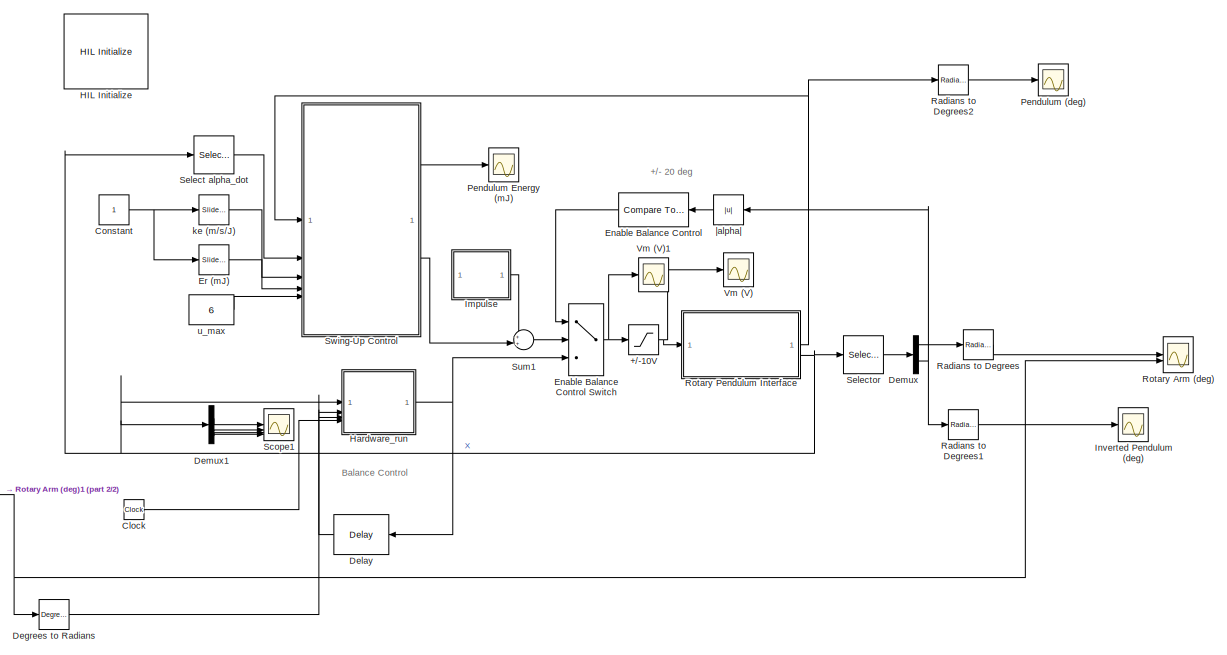
[diagram: root canvas - part 1/2, most of the canvas]
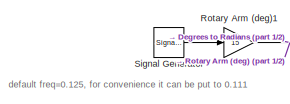
[diagram: root canvas - part 2/2, bottom left region]
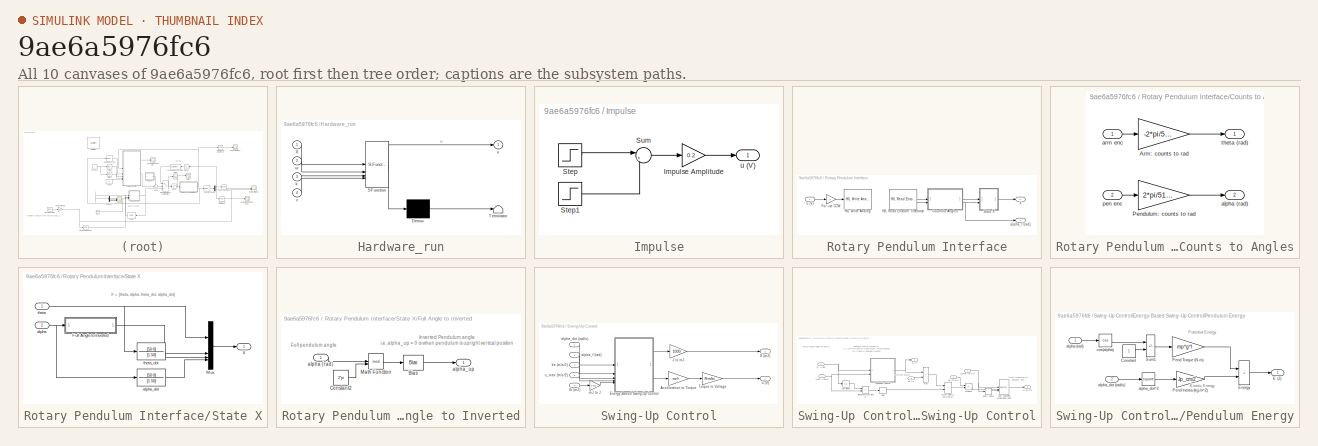
[diagram: thumbnail index - all 10 canvases of the model, root first then tree order]
MODEL slx_9ae6a5976fc6
KIND model
CONFIG AbsTol = auto
CONFIG EnableMultiTasking = on
CONFIG FixedStep = 0.002
CONFIG MaxStep = auto
CONFIG MinStep = auto
CONFIG RelTol = 1e-3
CONFIG SampleTimeConstraint = Unconstrained
CONFIG SolverName = ode4
CONFIG StartTime = 0.0
CONFIG StopTime = 50
BLOCK [Saturate] +//-10V
  LowerLimit = -10
  UpperLimit = 10
BLOCK [Clock] Clock
BLOCK [Constant] Constant
BLOCK [Reference] Degrees to Radians  REF=simulink_extras/Transformations/Degrees to
Radians
  SourceBlock = simulink_extras/Transformations/Degrees to\nRadians
  SourceType = DegreesToRadians
BLOCK [Delay] Delay
  DelayLength = 1
  InputPortMap = u0
  InputProcessing = Columns as channels (frame based)
BLOCK [Demux] Demux
  Outputs = 2
BLOCK [Demux] Demux1
BLOCK [Reference] Enable Balance Control  REF=simulink/Logic and Bit
Operations/Compare
To Constant
  SourceBlock = simulink/Logic and Bit\nOperations/Compare\nTo Constant
  SourceType = Compare To Constant
BLOCK [MultiPortSwitch] Enable Balance Control Switch
  DataPortOrder = Zero-based contiguous
  InputSameDT = off
  Inputs = 2
  SaturateOnIntegerOverflow = off
  zeroidx = on
BLOCK [Reference] Er (mJ)  REF=simulink/Math
Operations/Slider
Gain
  SourceBlock = simulink/Math\nOperations/Slider\nGain
  SourceType = Slider Gain
BLOCK [Reference] HIL Initialize  REF=quarc_library/Data Acquisition/Generic/Configuration/HIL Initialize
  AttributesFormatString = %<object_name> (%<board_type>-%<board_number>)
  SourceBlock = quarc_library/Data Acquisition/Generic/Configuration/HIL Initialize
  SourceType = HIL Initialize
  UserDataPersistent = on
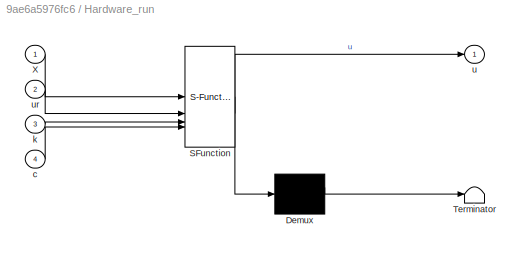
BLOCK [SubSystem] Hardware_run
  ErrorFcn = Stateflow.Translate.translate
  PermitHierarchicalResolution = ExplicitOnly
  SFBlockType = MATLAB Function
  TreatAsAtomicUnit = on
BLOCK [Demux] Hardware_run/ Demux 
  Outputs = 1
BLOCK [S-Function] Hardware_run/ SFunction 
  EnableBusSupport = off
  FunctionName = sf_sfun
  PortCounts = [4 2]
  SFcnIsStateOwnerBlock = off
  SFunctionDeploymentMode = off
  Tag = Stateflow S-Function 2
BLOCK [Terminator] Hardware_run/ Terminator 
BLOCK [Inport] Hardware_run/X
BLOCK [Inport] Hardware_run/c
  Port = 4
BLOCK [Inport] Hardware_run/k
  Port = 3
BLOCK [Outport] Hardware_run/u
BLOCK [Inport] Hardware_run/ur
  Port = 2
BLOCK [SubSystem] Impulse
BLOCK [Gain] Impulse/Impulse Amplitude
  Gain = 0.2
BLOCK [Step] Impulse/Step
  SampleTime = 0
BLOCK [Step] Impulse/Step1
  After = -1
  SampleTime = 0
  Time = 1.1
BLOCK [Sum] Impulse/Sum
  Inputs = |++
BLOCK [Outport] Impulse/u (V)
  VectorParamsAs1DForOutWhenUnconnected = off
BLOCK [Scope] Inverted Pendulum (deg)
  Floating = off
  NumInputPorts = 1
  ScopeSpecificationString = Simulink.scopes.TimeScopeBlockCfg('CurrentConfiguration', extmgr.ConfigurationSet(extmgr.Configuration('Core','General UI',true,'FigureColor',[1 1 1]),extmgr.Configuration('Core','Source UI',true),extmgr.Configuration('Sources','WiredSimulink',true,'DataLoggingVariableName','ScopeData1'),extmgr.Configuration('Visuals','Time Domain',true,'SerializedDisplays',{struct('MinYLimReal','-224.93408','MaxY...<+1631ch>
BLOCK [Scope] Pendulum (deg)
  Floating = off
  NumInputPorts = 1
  ScopeSpecificationString = Simulink.scopes.TimeScopeBlockCfg('CurrentConfiguration', extmgr.ConfigurationSet(extmgr.Configuration('Core','General UI',true),extmgr.Configuration('Core','Source UI',true),extmgr.Configuration('Sources','WiredSimulink',true,'DataLoggingVariableName','ScopeData1'),extmgr.Configuration('Visuals','Time Domain',true,'SerializedDisplays',{struct('MinYLimReal','-1055.32471','MaxYLimReal','337.96143',...<+1452ch>
BLOCK [Scope] Pendulum Energy (mJ)
  Floating = off
  NumInputPorts = 1
  ScopeSpecificationString = Simulink.scopes.TimeScopeBlockCfg('CurrentConfiguration', extmgr.ConfigurationSet(extmgr.Configuration('Core','General UI',true),extmgr.Configuration('Core','Source UI',true),extmgr.Configuration('Sources','WiredSimulink',true,'DataLoggingVariableName','ScopeData3'),extmgr.Configuration('Visuals','Time Domain',true,'SerializedDisplays',{struct('MinYLimReal','-4.0237','MaxYLimReal','36.21326','YLab...<+1409ch>
BLOCK [Reference] Radians to Degrees  REF=simulink_extras/Transformations/Radians
to Degrees
  SourceBlock = simulink_extras/Transformations/Radians\nto Degrees
  SourceType = RadiansToDegrees
BLOCK [Reference] Radians to Degrees1  REF=simulink_extras/Transformations/Radians
to Degrees
  SourceBlock = simulink_extras/Transformations/Radians\nto Degrees
  SourceType = RadiansToDegrees
BLOCK [Reference] Radians to Degrees2  REF=simulink_extras/Transformations/Radians
to Degrees
  SourceBlock = simulink_extras/Transformations/Radians\nto Degrees
  SourceType = RadiansToDegrees
BLOCK [Scope] Rotary Arm (deg)
  Floating = off
  NumInputPorts = 2
  ScopeSpecificationString = Simulink.scopes.TimeScopeBlockCfg('CurrentConfiguration', extmgr.ConfigurationSet(extmgr.Configuration('Core','General UI',true,'FigureColor',[1 1 1]),extmgr.Configuration('Core','Source UI',true),extmgr.Configuration('Sources','WiredSimulink',true,'DataLoggingVariableName','ScopeData2'),extmgr.Configuration('Visuals','Time Domain',true,'SerializedDisplays',{struct('MinYLimReal','-112.60986','MaxY...<+1639ch>
BLOCK [Gain] Rotary Arm (deg)1
  Gain = 15
BLOCK [SubSystem] Rotary Pendulum Interface
BLOCK [SubSystem] Rotary Pendulum Interface/Counts to Angles
BLOCK [Gain] Rotary Pendulum Interface/Counts to Angles/Arm: counts to rad
  Gain = -2*pi/512/4
BLOCK [Gain] Rotary Pendulum Interface/Counts to Angles/Pendulum: counts to rad
  Gain = 2*pi/512/4
BLOCK [Outport] Rotary Pendulum Interface/Counts to Angles/alpha (rad)
  Port = 2
  VectorParamsAs1DForOutWhenUnconnected = off
BLOCK [Inport] Rotary Pendulum Interface/Counts to Angles/arm enc
BLOCK [Inport] Rotary Pendulum Interface/Counts to Angles/pen enc
  Port = 2
BLOCK [Outport] Rotary Pendulum Interface/Counts to Angles/theta (rad)
  VectorParamsAs1DForOutWhenUnconnected = off
BLOCK [Gain] Rotary Pendulum Interface/For +ve CCW
  Gain = -1
BLOCK [Reference] Rotary Pendulum Interface/HIL Read Encoder Timebase  REF=quarc_library/Data Acquisition/Generic/Timebases/HIL Read Encoder
Timebase
  AttributesFormatString = (%<object_name>)
  SourceBlock = quarc_library/Data Acquisition/Generic/Timebases/HIL Read Encoder\nTimebase
  SourceType = HIL Read Encoder Timebase
  UserDataPersistent = on
BLOCK [Reference] Rotary Pendulum Interface/HIL Write Analog  REF=quarc_library/Data Acquisition/Generic/Immediate I//O/HIL Write Analog
  AttributesFormatString = (%<object_name>)
  SourceBlock = quarc_library/Data Acquisition/Generic/Immediate I//O/HIL Write Analog
  SourceType = HIL Write Analog
  UserDataPersistent = on
BLOCK [SubSystem] Rotary Pendulum Interface/State X
BLOCK [SubSystem] Rotary Pendulum Interface/State X/Full Angle to Inverted
BLOCK [Bias] Rotary Pendulum Interface/State X/Full Angle to Inverted/Bias
  Bias = -pi
  SaturateOnIntegerOverflow = off
BLOCK [Constant] Rotary Pendulum Interface/State X/Full Angle to Inverted/Constant2
  Value = 2*pi
BLOCK [Math] Rotary Pendulum Interface/State X/Full Angle to Inverted/Math Function
  Operator = mod
  SignedPower = on
BLOCK [Inport] Rotary Pendulum Interface/State X/Full Angle to Inverted/alpha (rad)
BLOCK [Outport] Rotary Pendulum Interface/State X/Full Angle to Inverted/alpha_up
  VectorParamsAs1DForOutWhenUnconnected = off
BLOCK [Mux] Rotary Pendulum Interface/State X/Mux
  DisplayOption = bar
BLOCK [Outport] Rotary Pendulum Interface/State X/X
  VectorParamsAs1DForOutWhenUnconnected = off
BLOCK [Inport] Rotary Pendulum Interface/State X/alpha
  Port = 2
BLOCK [TransferFcn] Rotary Pendulum Interface/State X/alpha_dot
  Denominator = [1 50]
  Numerator = [50 0]
BLOCK [Inport] Rotary Pendulum Interface/State X/theta
BLOCK [TransferFcn] Rotary Pendulum Interface/State X/theta_dot
  Denominator = [1 50]
  Numerator = [50 0]
BLOCK [Outport] Rotary Pendulum Interface/X
  Port = 2
  VectorParamsAs1DForOutWhenUnconnected = off
BLOCK [Outport] Rotary Pendulum Interface/alpha_f (rad)
  VectorParamsAs1DForOutWhenUnconnected = off
BLOCK [Inport] Rotary Pendulum Interface/u (V)
BLOCK [Scope] Scope1
  Floating = off
  NumInputPorts = 4
  ScopeSpecificationString = Simulink.scopes.TimeScopeBlockCfg('CurrentConfiguration', extmgr.ConfigurationSet(extmgr.Configuration('Core','General UI',true,'FigureColor',[1 1 1]),extmgr.Configuration('Core','Source UI',true),extmgr.Configuration('Sources','WiredSimulink',true,'DataLoggingVariableName','ScopeData2','DataLoggingLimitDataPoints',true,'DataLoggingSaveFormat','Array','DataLoggingDecimation','1','DataLoggingDecima...<+4162ch>
BLOCK [Selector] Select alpha_dot
  IndexOptions = Index vector (dialog)
  Indices = [4]
  InputPortWidth = 4
  OutputSizes = 1
BLOCK [Selector] Selector
  IndexOptions = Index vector (dialog)
  Indices = [1 2]
  InputPortWidth = 4
  OutputSizes = 1
BLOCK [SignalGenerator] Signal Generator
  Frequency = 0.125
  WaveForm = square
BLOCK [Sum] Sum1
  Inputs = ++|
BLOCK [SubSystem] Swing-Up Control
BLOCK [Gain] Swing-Up Control/Acceleration to Torque
  Gain = mr*r
BLOCK [Outport] Swing-Up Control/E (mJ)
  VectorParamsAs1DForOutWhenUnconnected = off
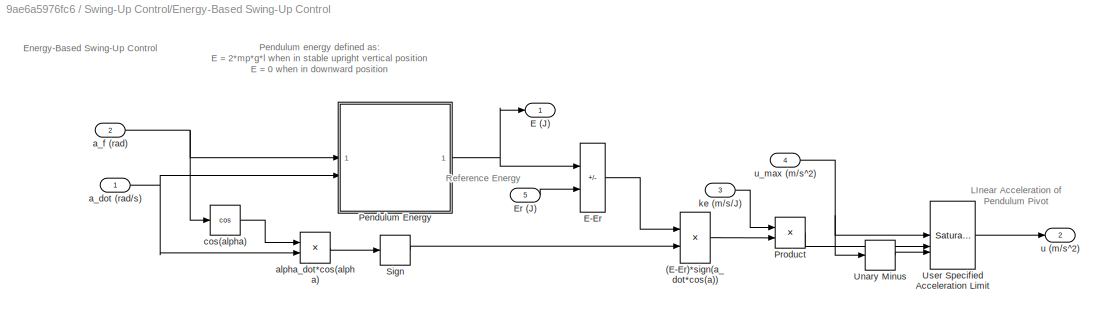
BLOCK [SubSystem] Swing-Up Control/Energy-Based Swing-Up Control
BLOCK [Product] Swing-Up Control/Energy-Based Swing-Up Control/(E-Er)*sign(a_dot*cos(a))
  RndMeth = Zero
BLOCK [Outport] Swing-Up Control/Energy-Based Swing-Up Control/E (J)
  VectorParamsAs1DForOutWhenUnconnected = off
BLOCK [Sum] Swing-Up Control/Energy-Based Swing-Up Control/E-Er
  IconShape = rectangular
  Inputs = +-
BLOCK [Inport] Swing-Up Control/Energy-Based Swing-Up Control/Er (J)
  Port = 5
BLOCK [SubSystem] Swing-Up Control/Energy-Based Swing-Up Control/Pendulum Energy
BLOCK [Constant] Swing-Up Control/Energy-Based Swing-Up Control/Pendulum Energy/Constant
BLOCK [Outport] Swing-Up Control/Energy-Based Swing-Up Control/Pendulum Energy/E (J)
  VectorParamsAs1DForOutWhenUnconnected = off
BLOCK [Sum] Swing-Up Control/Energy-Based Swing-Up Control/Pendulum Energy/Energy
  IconShape = rectangular
  SaturateOnIntegerOverflow = on
BLOCK [Gain] Swing-Up Control/Energy-Based Swing-Up Control/Pendulum Energy/Pend Inertia (kg.m^2)
  Gain = Jp_cm/2
BLOCK [Gain] Swing-Up Control/Energy-Based Swing-Up Control/Pendulum Energy/Pend Torque (N.m)
  Gain = mp*g*l
BLOCK [Sum] Swing-Up Control/Energy-Based Swing-Up Control/Pendulum Energy/Sum1
  IconShape = rectangular
  Inputs = -+
  SaturateOnIntegerOverflow = on
BLOCK [Inport] Swing-Up Control/Energy-Based Swing-Up Control/Pendulum Energy/alpha (rad)
BLOCK [Inport] Swing-Up Control/Energy-Based Swing-Up Control/Pendulum Energy/alpha_dot (rad//s)
  Port = 2
BLOCK [Math] Swing-Up Control/Energy-Based Swing-Up Control/Pendulum Energy/alpha_dot^2
  Operator = square
  SignedPower = on
BLOCK [Trigonometry] Swing-Up Control/Energy-Based Swing-Up Control/Pendulum Energy/cos(alpha)
  Operator = cos
BLOCK [Product] Swing-Up Control/Energy-Based Swing-Up Control/Product
  RndMeth = Zero
BLOCK [Signum] Swing-Up Control/Energy-Based Swing-Up Control/Sign
BLOCK [UnaryMinus] Swing-Up Control/Energy-Based Swing-Up Control/Unary Minus
BLOCK [Reference] Swing-Up Control/Energy-Based Swing-Up Control/User Specified Acceleration Limit  REF=simulink/Discontinuities/Saturation
Dynamic
  SourceBlock = simulink/Discontinuities/Saturation\nDynamic
  SourceType = Saturation Dynamic
BLOCK [Inport] Swing-Up Control/Energy-Based Swing-Up Control/a_dot (rad//s)
BLOCK [Inport] Swing-Up Control/Energy-Based Swing-Up Control/a_f (rad)
  Port = 2
BLOCK [Product] Swing-Up Control/Energy-Based Swing-Up Control/alpha_dot*cos(alpha)
  RndMeth = Zero
BLOCK [Trigonometry] Swing-Up Control/Energy-Based Swing-Up Control/cos(alpha)
  Operator = cos
BLOCK [Inport] Swing-Up Control/Energy-Based Swing-Up Control/ke (m//s//J)
  Port = 3
BLOCK [Outport] Swing-Up Control/Energy-Based Swing-Up Control/u (m//s^2)
  Port = 2
  VectorParamsAs1DForOutWhenUnconnected = off
BLOCK [Inport] Swing-Up Control/Energy-Based Swing-Up Control/u_max (m//s^2)
  Port = 4
BLOCK [Inport] Swing-Up Control/Er (mJ)
  Port = 4
BLOCK [Gain] Swing-Up Control/J to mJ
  Gain = 1000
BLOCK [Gain] Swing-Up Control/Torque to Voltage
  Gain = Rm/kt
BLOCK [Inport] Swing-Up Control/alpha_dot (rad//s)
  Port = 2
BLOCK [Inport] Swing-Up Control/alpha_f (rad)
BLOCK [Inport] Swing-Up Control/ke (m//s//J)
  Port = 3
BLOCK [Gain] Swing-Up Control/mJ to J
  Gain = 0.001
BLOCK [Outport] Swing-Up Control/u (V)
  Port = 2
  VectorParamsAs1DForOutWhenUnconnected = off
BLOCK [Inport] Swing-Up Control/u_max (m//s^2)
  Port = 5
BLOCK [Scope] Vm (V)
  Floating = off
  NumInputPorts = 1
  ScopeSpecificationString = Simulink.scopes.TimeScopeBlockCfg('CurrentConfiguration', extmgr.ConfigurationSet(extmgr.Configuration('Core','General UI',true,'FigureColor',[1 1 1]),extmgr.Configuration('Core','Source UI',true),extmgr.Configuration('Sources','WiredSimulink',true),extmgr.Configuration('Visuals','Time Domain',true,'SerializedDisplays',{struct('MinYLimReal','-3.12436','MaxYLimReal','2.95361','YLabelReal','Control ...<+1563ch>
BLOCK [Scope] Vm (V)1
  Floating = off
  NumInputPorts = 1
  ScopeSpecificationString = Simulink.scopes.TimeScopeBlockCfg('CurrentConfiguration', extmgr.ConfigurationSet(extmgr.Configuration('Core','General UI',true,'FigureColor',[1 1 1]),extmgr.Configuration('Core','Source UI',true),extmgr.Configuration('Sources','WiredSimulink',true,'DataLoggingVariableName','ScopeData1'),extmgr.Configuration('Visuals','Time Domain',true,'SerializedDisplays',{struct('MinYLimReal','-6.62404','MaxYLi...<+1625ch>
BLOCK [Reference] ke (m//s//J)  REF=simulink/Math
Operations/Slider
Gain
  SourceBlock = simulink/Math\nOperations/Slider\nGain
  SourceType = Slider Gain
BLOCK [Constant] u_max
  Value = 6
BLOCK [Abs] |alpha|
  SaturateOnIntegerOverflow = off
ANNOTATION (root): +/- 20 deg
ANNOTATION (root): Balance Control
ANNOTATION (root): default freq=0.125, for convenience it can be put to 0.111
ANNOTATION Rotary Pendulum Interface/State X: X = [theta, alpha, theta_dot, alpha_dot]
ANNOTATION Rotary Pendulum Interface/State X/Full Angle to Inverted: Full pendulum angle
ANNOTATION Rotary Pendulum Interface/State X/Full Angle to Inverted: Inverted Pendulum angle i.e. alpha_up = 0 is when pendulum is upright vertical position
ANNOTATION Swing-Up Control/Energy-Based Swing-Up Control: Energy-Based Swing-Up Control
ANNOTATION Swing-Up Control/Energy-Based Swing-Up Control: LInear Acceleration of Pendulum Pivot
ANNOTATION Swing-Up Control/Energy-Based Swing-Up Control: Pendulum energy defined as: E = 2*mp*g*l when in stable upright vertical position E = 0 when in downward position
ANNOTATION Swing-Up Control/Energy-Based Swing-Up Control: Reference Energy
ANNOTATION Swing-Up Control/Energy-Based Swing-Up Control/Pendulum Energy: Kinetic Energy
ANNOTATION Swing-Up Control/Energy-Based Swing-Up Control/Pendulum Energy: Potential Energy
NET +//-10V:1 -> Rotary Pendulum Interface:1, Vm (V):1
LINE Clock:1 -> Hardware_run:4
NET Constant:1 -> Er (mJ):1, ke (m//s//J):1
LINE Degrees to Radians:1 -> Hardware_run:3
LINE Delay:1 -> Hardware_run:2
LINE Demux1:1 -> Scope1:1
LINE Demux1:2 -> Scope1:2
LINE Demux1:3 -> Scope1:3
LINE Demux1:4 -> Scope1:4
LINE Demux:1 -> Radians to Degrees:1
NET Demux:2 -> Radians to Degrees1:1, |alpha|:1
NET Enable Balance Control Switch:1 -> +//-10V:1, Vm (V)1:1
LINE Enable Balance Control:1 -> Enable Balance Control Switch:1
LINE Er (mJ):1 -> Swing-Up Control:4
NET Hardware_run:1 -> Delay:1, Enable Balance Control Switch:3
LINE Impulse/Impulse Amplitude:1 -> Impulse/u (V):1
LINE Impulse/Step1:1 -> Impulse/Sum:2
LINE Impulse/Step:1 -> Impulse/Sum:1
LINE Impulse/Sum:1 -> Impulse/Impulse Amplitude:1
LINE Impulse:1 -> Sum1:1
LINE Radians to Degrees1:1 -> Inverted Pendulum (deg):1
LINE Radians to Degrees2:1 -> Pendulum (deg):1
LINE Radians to Degrees:1 -> Rotary Arm (deg):1
NET Rotary Arm (deg)1:1 -> Degrees to Radians:1, Rotary Arm (deg):2
LINE Rotary Pendulum Interface/Counts to Angles/Arm: counts to rad:1 -> Rotary Pendulum Interface/Counts to Angles/theta (rad):1
LINE Rotary Pendulum Interface/Counts to Angles/Pendulum: counts to rad:1 -> Rotary Pendulum Interface/Counts to Angles/alpha (rad):1
LINE Rotary Pendulum Interface/Counts to Angles/arm enc:1 -> Rotary Pendulum Interface/Counts to Angles/Arm: counts to rad:1
LINE Rotary Pendulum Interface/Counts to Angles/pen enc:1 -> Rotary Pendulum Interface/Counts to Angles/Pendulum: counts to rad:1
LINE Rotary Pendulum Interface/Counts to Angles:1 -> Rotary Pendulum Interface/State X:1
NET Rotary Pendulum Interface/Counts to Angles:2 -> Rotary Pendulum Interface/State X:2, Rotary Pendulum Interface/alpha_f (rad):1
LINE Rotary Pendulum Interface/For +ve CCW:1 -> Rotary Pendulum Interface/HIL Write Analog:1
LINE Rotary Pendulum Interface/HIL Read Encoder Timebase:1 -> Rotary Pendulum Interface/Counts to Angles:1
LINE Rotary Pendulum Interface/HIL Read Encoder Timebase:2 -> Rotary Pendulum Interface/Counts to Angles:2
LINE Rotary Pendulum Interface/State X/Full Angle to Inverted/Bias:1 -> Rotary Pendulum Interface/State X/Full Angle to Inverted/alpha_up:1
LINE Rotary Pendulum Interface/State X/Full Angle to Inverted/Constant2:1 -> Rotary Pendulum Interface/State X/Full Angle to Inverted/Math Function:2
LINE Rotary Pendulum Interface/State X/Full Angle to Inverted/Math Function:1 -> Rotary Pendulum Interface/State X/Full Angle to Inverted/Bias:1
LINE Rotary Pendulum Interface/State X/Full Angle to Inverted/alpha (rad):1 -> Rotary Pendulum Interface/State X/Full Angle to Inverted/Math Function:1
LINE Rotary Pendulum Interface/State X/Full Angle to Inverted:1 -> Rotary Pendulum Interface/State X/Mux:2
LINE Rotary Pendulum Interface/State X/Mux:1 -> Rotary Pendulum Interface/State X/X:1
NET Rotary Pendulum Interface/State X/alpha:1 -> Rotary Pendulum Interface/State X/Full Angle to Inverted:1, Rotary Pendulum Interface/State X/alpha_dot:1
LINE Rotary Pendulum Interface/State X/alpha_dot:1 -> Rotary Pendulum Interface/State X/Mux:4
NET Rotary Pendulum Interface/State X/theta:1 -> Rotary Pendulum Interface/State X/Mux:1, Rotary Pendulum Interface/State X/theta_dot:1
LINE Rotary Pendulum Interface/State X/theta_dot:1 -> Rotary Pendulum Interface/State X/Mux:3
LINE Rotary Pendulum Interface/State X:1 -> Rotary Pendulum Interface/X:1
LINE Rotary Pendulum Interface/u (V):1 -> Rotary Pendulum Interface/For +ve CCW:1
NET Rotary Pendulum Interface:1 -> Radians to Degrees2:1, Swing-Up Control:1
NET Rotary Pendulum Interface:2 -> Demux1:1, Hardware_run:1, Select alpha_dot:1, Selector:1
LINE Select alpha_dot:1 -> Swing-Up Control:2
LINE Selector:1 -> Demux:1
LINE Signal Generator:1 -> Rotary Arm (deg)1:1
LINE Sum1:1 -> Enable Balance Control Switch:2
LINE Swing-Up Control/Acceleration to Torque:1 -> Swing-Up Control/Torque to Voltage:1
LINE Swing-Up Control/Energy-Based Swing-Up Control/(E-Er)*sign(a_dot*cos(a)):1 -> Swing-Up Control/Energy-Based Swing-Up Control/Product:2
LINE Swing-Up Control/Energy-Based Swing-Up Control/E-Er:1 -> Swing-Up Control/Energy-Based Swing-Up Control/(E-Er)*sign(a_dot*cos(a)):1
LINE Swing-Up Control/Energy-Based Swing-Up Control/Er (J):1 -> Swing-Up Control/Energy-Based Swing-Up Control/E-Er:2
LINE Swing-Up Control/Energy-Based Swing-Up Control/Pendulum Energy/Constant:1 -> Swing-Up Control/Energy-Based Swing-Up Control/Pendulum Energy/Sum1:2
LINE Swing-Up Control/Energy-Based Swing-Up Control/Pendulum Energy/Energy:1 -> Swing-Up Control/Energy-Based Swing-Up Control/Pendulum Energy/E (J):1
LINE Swing-Up Control/Energy-Based Swing-Up Control/Pendulum Energy/Pend Inertia (kg.m^2):1 -> Swing-Up Control/Energy-Based Swing-Up Control/Pendulum Energy/Energy:2
LINE Swing-Up Control/Energy-Based Swing-Up Control/Pendulum Energy/Pend Torque (N.m):1 -> Swing-Up Control/Energy-Based Swing-Up Control/Pendulum Energy/Energy:1
LINE Swing-Up Control/Energy-Based Swing-Up Control/Pendulum Energy/Sum1:1 -> Swing-Up Control/Energy-Based Swing-Up Control/Pendulum Energy/Pend Torque (N.m):1
LINE Swing-Up Control/Energy-Based Swing-Up Control/Pendulum Energy/alpha (rad):1 -> Swing-Up Control/Energy-Based Swing-Up Control/Pendulum Energy/cos(alpha):1
LINE Swing-Up Control/Energy-Based Swing-Up Control/Pendulum Energy/alpha_dot (rad//s):1 -> Swing-Up Control/Energy-Based Swing-Up Control/Pendulum Energy/alpha_dot^2:1
LINE Swing-Up Control/Energy-Based Swing-Up Control/Pendulum Energy/alpha_dot^2:1 -> Swing-Up Control/Energy-Based Swing-Up Control/Pendulum Energy/Pend Inertia (kg.m^2):1
LINE Swing-Up Control/Energy-Based Swing-Up Control/Pendulum Energy/cos(alpha):1 -> Swing-Up Control/Energy-Based Swing-Up Control/Pendulum Energy/Sum1:1
NET Swing-Up Control/Energy-Based Swing-Up Control/Pendulum Energy:1 -> Swing-Up Control/Energy-Based Swing-Up Control/E (J):1, Swing-Up Control/Energy-Based Swing-Up Control/E-Er:1
LINE Swing-Up Control/Energy-Based Swing-Up Control/Product:1 -> Swing-Up Control/Energy-Based Swing-Up Control/User Specified Acceleration Limit:2
LINE Swing-Up Control/Energy-Based Swing-Up Control/Sign:1 -> Swing-Up Control/Energy-Based Swing-Up Control/(E-Er)*sign(a_dot*cos(a)):2
LINE Swing-Up Control/Energy-Based Swing-Up Control/Unary Minus:1 -> Swing-Up Control/Energy-Based Swing-Up Control/User Specified Acceleration Limit:3
LINE Swing-Up Control/Energy-Based Swing-Up Control/User Specified Acceleration Limit:1 -> Swing-Up Control/Energy-Based Swing-Up Control/u (m//s^2):1
NET Swing-Up Control/Energy-Based Swing-Up Control/a_dot (rad//s):1 -> Swing-Up Control/Energy-Based Swing-Up Control/Pendulum Energy:2, Swing-Up Control/Energy-Based Swing-Up Control/alpha_dot*cos(alpha):2
NET Swing-Up Control/Energy-Based Swing-Up Control/a_f (rad):1 -> Swing-Up Control/Energy-Based Swing-Up Control/Pendulum Energy:1, Swing-Up Control/Energy-Based Swing-Up Control/cos(alpha):1
LINE Swing-Up Control/Energy-Based Swing-Up Control/alpha_dot*cos(alpha):1 -> Swing-Up Control/Energy-Based Swing-Up Control/Sign:1
LINE Swing-Up Control/Energy-Based Swing-Up Control/cos(alpha):1 -> Swing-Up Control/Energy-Based Swing-Up Control/alpha_dot*cos(alpha):1
LINE Swing-Up Control/Energy-Based Swing-Up Control/ke (m//s//J):1 -> Swing-Up Control/Energy-Based Swing-Up Control/Product:1
NET Swing-Up Control/Energy-Based Swing-Up Control/u_max (m//s^2):1 -> Swing-Up Control/Energy-Based Swing-Up Control/Unary Minus:1, Swing-Up Control/Energy-Based Swing-Up Control/User Specified Acceleration Limit:1
LINE Swing-Up Control/Energy-Based Swing-Up Control:1 -> Swing-Up Control/J to mJ:1
LINE Swing-Up Control/Energy-Based Swing-Up Control:2 -> Swing-Up Control/Acceleration to Torque:1
LINE Swing-Up Control/Er (mJ):1 -> Swing-Up Control/mJ to J:1
LINE Swing-Up Control/J to mJ:1 -> Swing-Up Control/E (mJ):1
LINE Swing-Up Control/Torque to Voltage:1 -> Swing-Up Control/u (V):1
LINE Swing-Up Control/alpha_dot (rad//s):1 -> Swing-Up Control/Energy-Based Swing-Up Control:1
LINE Swing-Up Control/alpha_f (rad):1 -> Swing-Up Control/Energy-Based Swing-Up Control:2
LINE Swing-Up Control/ke (m//s//J):1 -> Swing-Up Control/Energy-Based Swing-Up Control:3
LINE Swing-Up Control/mJ to J:1 -> Swing-Up Control/Energy-Based Swing-Up Control:5
LINE Swing-Up Control/u_max (m//s^2):1 -> Swing-Up Control/Energy-Based Swing-Up Control:4
LINE Swing-Up Control:1 -> Pendulum Energy (mJ):1
LINE Swing-Up Control:2 -> Sum1:2
LINE ke (m//s//J):1 -> Swing-Up Control:3
LINE u_max:1 -> Swing-Up Control:5
LINE |alpha|:1 -> Enable Balance Control:1
note: NET lines group one-source signal fan-out (src -> all destinations, sorted); 1:1 wires keep LINE
CHART Hardware_run states=1 transitions=1
  STATE_LABEL 'eML_blk_kernel()'
  STATE_LABEL 'SCRIPT:\nfunction u = fcn(X,ur,k,c)\n% Motor\n% Resistance\nRm = 8.4;\n% Current-torque \nkt = 0.042;\n% Back-emf constant \nkm = 0.042;\n% Rotary Arm\n% Mass (kg)\nmr = 0.095;\n% Total length (m)\nrr = 0.085;\n% Moment of inertia about pivot \nJr = mr*rr^2/3;\n% Equivalent Viscous Damping Coefficient \nbr = 1e-3; \n% Pendulum Link\n% Mass \nmp = 0.024;\n% Total length\nLp = 0.129;\n% Pendulum center of mass\nl = Lp/2;\n%...<+1640ch>'
CHART  states=0 transitions=0
